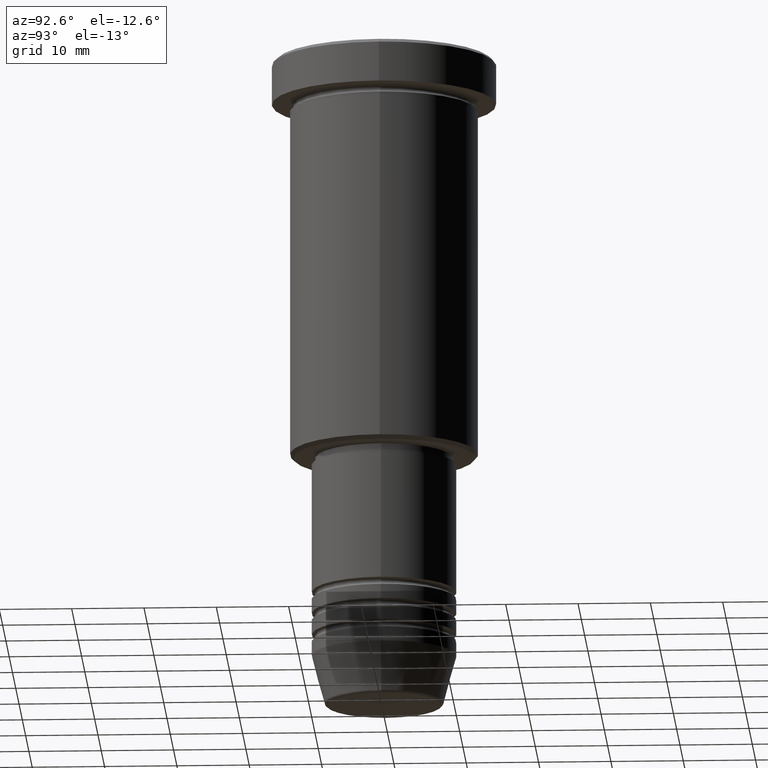
[diagram: clean part render]
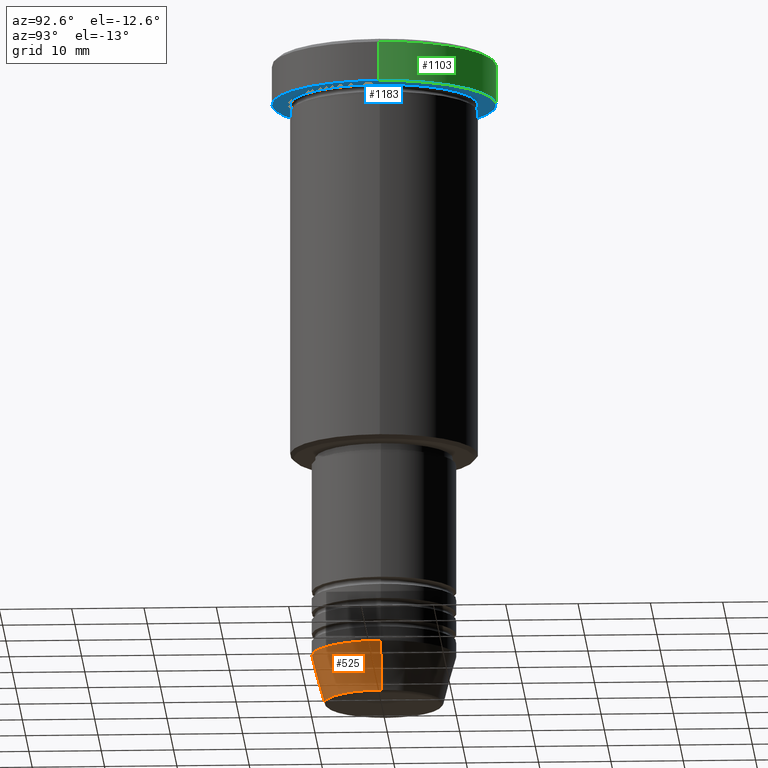
[diagram: same view with three faces highlighted in distinct colors, each labeled with its STEP entity id]
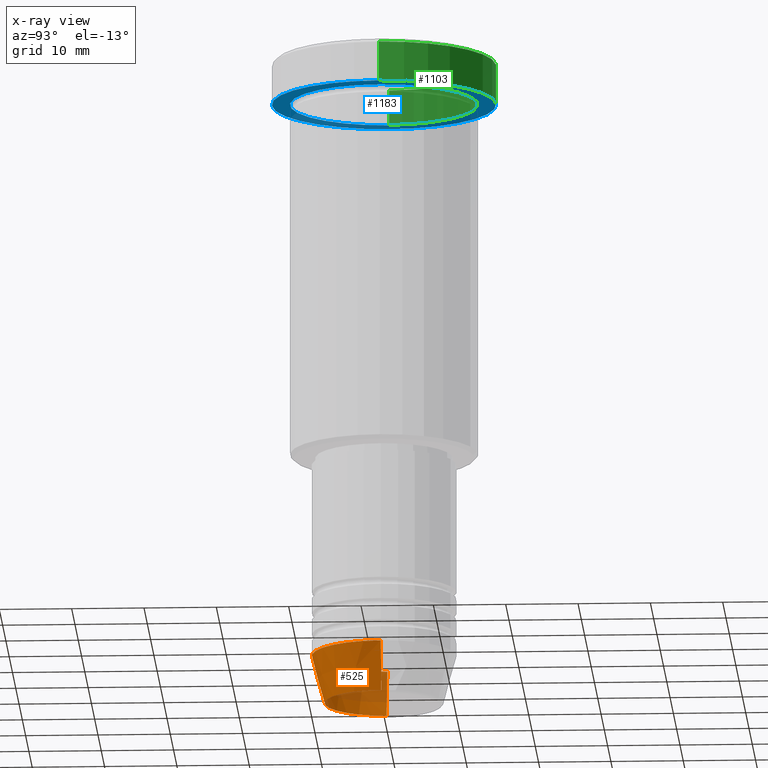
[diagram: x-ray of the same camera — body ghosted, the three highlighted faces saturated]
A machine part, auxiliary view with three faces highlighted in distinct colors.
The next image is the same camera in x-ray (body ghosted, the three faces saturated) — at least one of them is partly hidden behind the body in this view.
Their STEP definitions:

[orange] entity #525 — the highlighted conical surface has half-angle 15 deg.
#6 = CARTESIAN_POINT ( 'NONE',  ( 0.000000000000000000, 0.000000000000000000, -84.00000000000000000 ) ) ;
#9 = VERTEX_POINT ( 'NONE', #24 ) ;
#24 = CARTESIAN_POINT ( 'NONE',  ( -10.00000000000000000, 1.224646799147353256E-15, -84.00000000000000000 ) ) ;
#66 = AXIS2_PLACEMENT_3D ( 'NONE', #528, #891, #135 ) ;
#70 = CIRCLE ( 'NONE', #583, 10.00000000000000000 ) ;
#97 = CIRCLE ( 'NONE', #693, 8.223655072137194821 ) ;
#135 = DIRECTION ( 'NONE',  ( 1.000000000000000000, 0.000000000000000000, 0.000000000000000000 ) ) ;
#173 = CARTESIAN_POINT ( 'NONE',  ( -8.223655072137194821, 1.115877042642912251E-15, -90.62940952255125637 ) ) ;
#211 = ORIENTED_EDGE ( 'NONE', *, *, #1033, .F. ) ;
#228 = DIRECTION ( 'NONE',  ( 1.000000000000000000, 0.000000000000000000, 0.000000000000000000 ) ) ;
#238 = EDGE_LOOP ( 'NONE', ( #211, #1132, #548, #253 ) ) ;
#253 = ORIENTED_EDGE ( 'NONE', *, *, #1166, .F. ) ;
#262 = CARTESIAN_POINT ( 'NONE',  ( 10.00000000000000000, 0.000000000000000000, -84.00000000000000000 ) ) ;
#280 = LINE ( 'NONE', #988, #1057 ) ;
#340 = DIRECTION ( 'NONE',  ( 0.2588190451025213501, 0.000000000000000000, 0.9659258262890680902 ) ) ;
#384 = CARTESIAN_POINT ( 'NONE',  ( 0.000000000000000000, 0.000000000000000000, -90.62940952255125637 ) ) ;
#487 = EDGE_CURVE ( 'NONE', #672, #865, #717, .T. ) ;
#525 = ADVANCED_FACE ( 'NONE', ( #979 ), #622, .T. ) ;
#528 = CARTESIAN_POINT ( 'NONE',  ( 0.000000000000000000, 0.000000000000000000, -84.00000000000000000 ) ) ;
#532 = VERTEX_POINT ( 'NONE', #173 ) ;
#548 = ORIENTED_EDGE ( 'NONE', *, *, #487, .T. ) ;
#583 = AXIS2_PLACEMENT_3D ( 'NONE', #6, #1000, #1102 ) ;
#608 = CARTESIAN_POINT ( 'NONE',  ( 10.00000000000000000, 0.000000000000000000, -84.00000000000000000 ) ) ;
#619 = EDGE_CURVE ( 'NONE', #532, #672, #97, .T. ) ;
#622 = CONICAL_SURFACE ( 'NONE', #66, 10.00000000000000000, 0.2617993877991500740 ) ;
#672 = VERTEX_POINT ( 'NONE', #699 ) ;
#693 = AXIS2_PLACEMENT_3D ( 'NONE', #384, #1168, #228 ) ;
#699 = CARTESIAN_POINT ( 'NONE',  ( 8.223655072137194821, 0.000000000000000000, -90.62940952255125637 ) ) ;
#717 = LINE ( 'NONE', #608, #1052 ) ;
#742 = DIRECTION ( 'NONE',  ( -0.2588190451025213501, 3.169619151431772337E-17, 0.9659258262890680902 ) ) ;
#865 = VERTEX_POINT ( 'NONE', #262 ) ;
#891 = DIRECTION ( 'NONE',  ( -0.000000000000000000, -0.000000000000000000, 1.000000000000000000 ) ) ;
#979 = FACE_OUTER_BOUND ( 'NONE', #238, .T. ) ;
#988 = CARTESIAN_POINT ( 'NONE',  ( -10.00000000000000000, 1.224646799147353256E-15, -84.00000000000000000 ) ) ;
#1000 = DIRECTION ( 'NONE',  ( -0.000000000000000000, -0.000000000000000000, 1.000000000000000000 ) ) ;
#1033 = EDGE_CURVE ( 'NONE', #532, #9, #280, .T. ) ;
#1052 = VECTOR ( 'NONE', #340, 1000.000000000000000 ) ;
#1057 = VECTOR ( 'NONE', #742, 1000.000000000000000 ) ;
#1102 = DIRECTION ( 'NONE',  ( 1.000000000000000000, 0.000000000000000000, 0.000000000000000000 ) ) ;
#1132 = ORIENTED_EDGE ( 'NONE', *, *, #619, .T. ) ;
#1166 = EDGE_CURVE ( 'NONE', #9, #865, #70, .T. ) ;
#1168 = DIRECTION ( 'NONE',  ( -0.000000000000000000, -0.000000000000000000, 1.000000000000000000 ) ) ;

[blue] entity #1183 — the highlighted planar face has unit normal (0, 0, -1).
#3 = DIRECTION ( 'NONE',  ( 1.000000000000000000, 0.000000000000000000, 0.000000000000000000 ) ) ;
#13 = FACE_OUTER_BOUND ( 'NONE', #759, .T. ) ;
#36 = EDGE_CURVE ( 'NONE', #392, #510, #96, .T. ) ;
#91 = PLANE ( 'NONE',  #102 ) ;
#93 = ORIENTED_EDGE ( 'NONE', *, *, #996, .T. ) ;
#96 = CIRCLE ( 'NONE', #772, 13.00000000000000000 ) ;
#102 = AXIS2_PLACEMENT_3D ( 'NONE', #458, #371, #377 ) ;
#150 = CARTESIAN_POINT ( 'NONE',  ( -13.00000000000000000, 0.000000000000000000, -5.999999999999994671 ) ) ;
#179 = ORIENTED_EDGE ( 'NONE', *, *, #1011, .F. ) ;
#193 = DIRECTION ( 'NONE',  ( -1.000000000000000000, 0.000000000000000000, 0.000000000000000000 ) ) ;
#232 = AXIS2_PLACEMENT_3D ( 'NONE', #1106, #816, #460 ) ;
#289 = ORIENTED_EDGE ( 'NONE', *, *, #36, .T. ) ;
#292 = AXIS2_PLACEMENT_3D ( 'NONE', #650, #362, #3 ) ;
#306 = ORIENTED_EDGE ( 'NONE', *, *, #1151, .F. ) ;
#354 = CIRCLE ( 'NONE', #232, 13.00000000000000000 ) ;
#356 = CARTESIAN_POINT ( 'NONE',  ( 13.00000000000000000, 1.592040838891559095E-15, -5.999999999999994671 ) ) ;
#362 = DIRECTION ( 'NONE',  ( -0.000000000000000000, -0.000000000000000000, 1.000000000000000000 ) ) ;
#371 = DIRECTION ( 'NONE',  ( 0.000000000000000000, 0.000000000000000000, -1.000000000000000000 ) ) ;
#377 = DIRECTION ( 'NONE',  ( -1.000000000000000000, 0.000000000000000000, -0.000000000000000000 ) ) ;
#392 = VERTEX_POINT ( 'NONE', #356 ) ;
#458 = CARTESIAN_POINT ( 'NONE',  ( 0.000000000000000000, 15.50000000000000000, -5.999999999999995559 ) ) ;
#460 = DIRECTION ( 'NONE',  ( -1.000000000000000000, 0.000000000000000000, 0.000000000000000000 ) ) ;
#510 = VERTEX_POINT ( 'NONE', #150 ) ;
#570 = EDGE_LOOP ( 'NONE', ( #93, #289 ) ) ;
#581 = AXIS2_PLACEMENT_3D ( 'NONE', #910, #733, #818 ) ;
#650 = CARTESIAN_POINT ( 'NONE',  ( 0.000000000000000000, 0.000000000000000000, -5.999999999999995559 ) ) ;
#701 = VERTEX_POINT ( 'NONE', #858 ) ;
#733 = DIRECTION ( 'NONE',  ( -0.000000000000000000, -0.000000000000000000, 1.000000000000000000 ) ) ;
#737 = VERTEX_POINT ( 'NONE', #1059 ) ;
#759 = EDGE_LOOP ( 'NONE', ( #306, #179 ) ) ;
#767 = CARTESIAN_POINT ( 'NONE',  ( 0.000000000000000000, 0.000000000000000000, -5.999999999999995559 ) ) ;
#772 = AXIS2_PLACEMENT_3D ( 'NONE', #767, #1039, #193 ) ;
#808 = CIRCLE ( 'NONE', #292, 15.50000000000000000 ) ;
#816 = DIRECTION ( 'NONE',  ( -0.000000000000000000, -0.000000000000000000, 1.000000000000000000 ) ) ;
#818 = DIRECTION ( 'NONE',  ( 1.000000000000000000, 0.000000000000000000, 0.000000000000000000 ) ) ;
#828 = FACE_BOUND ( 'NONE', #570, .T. ) ;
#858 = CARTESIAN_POINT ( 'NONE',  ( 15.50000000000000000, 0.000000000000000000, -5.999999999999995559 ) ) ;
#910 = CARTESIAN_POINT ( 'NONE',  ( 0.000000000000000000, 0.000000000000000000, -5.999999999999995559 ) ) ;
#941 = CIRCLE ( 'NONE', #581, 15.50000000000000000 ) ;
#996 = EDGE_CURVE ( 'NONE', #510, #392, #354, .T. ) ;
#1011 = EDGE_CURVE ( 'NONE', #737, #701, #808, .T. ) ;
#1039 = DIRECTION ( 'NONE',  ( -0.000000000000000000, -0.000000000000000000, 1.000000000000000000 ) ) ;
#1059 = CARTESIAN_POINT ( 'NONE',  ( -15.50000000000000000, 1.898202538678397557E-15, -5.999999999999995559 ) ) ;
#1106 = CARTESIAN_POINT ( 'NONE',  ( 0.000000000000000000, 0.000000000000000000, -5.999999999999995559 ) ) ;
#1151 = EDGE_CURVE ( 'NONE', #701, #737, #941, .T. ) ;
#1183 = ADVANCED_FACE ( 'NONE', ( #828, #13 ), #91, .T. ) ;

[green] entity #1103 — the highlighted cylindrical surface (partial cylindrical patch) has radius 15.5 mm, axis along (-0, -0, 1).
#8 = DIRECTION ( 'NONE',  ( 0.000000000000000000, 0.000000000000000000, -1.000000000000000000 ) ) ;
#87 = EDGE_CURVE ( 'NONE', #701, #892, #1065, .T. ) ;
#90 = VERTEX_POINT ( 'NONE', #241 ) ;
#104 = CYLINDRICAL_SURFACE ( 'NONE', #332, 15.50000000000000000 ) ;
#241 = CARTESIAN_POINT ( 'NONE',  ( -15.50000000000000000, 1.898202538678397557E-15, -0.4999999999999987232 ) ) ;
#278 = CARTESIAN_POINT ( 'NONE',  ( 15.50000000000000000, 0.000000000000000000, -0.4999999999999987232 ) ) ;
#284 = FACE_OUTER_BOUND ( 'NONE', #1126, .T. ) ;
#316 = CARTESIAN_POINT ( 'NONE',  ( 15.50000000000000000, 0.000000000000000000, 0.000000000000000000 ) ) ;
#332 = AXIS2_PLACEMENT_3D ( 'NONE', #652, #453, #822 ) ;
#364 = ORIENTED_EDGE ( 'NONE', *, *, #1151, .T. ) ;
#419 = ORIENTED_EDGE ( 'NONE', *, *, #856, .T. ) ;
#425 = VECTOR ( 'NONE', #857, 1000.000000000000000 ) ;
#453 = DIRECTION ( 'NONE',  ( -0.000000000000000000, -0.000000000000000000, 1.000000000000000000 ) ) ;
#513 = DIRECTION ( 'NONE',  ( -0.000000000000000000, -0.000000000000000000, 1.000000000000000000 ) ) ;
#552 = ORIENTED_EDGE ( 'NONE', *, *, #1003, .T. ) ;
#581 = AXIS2_PLACEMENT_3D ( 'NONE', #910, #733, #818 ) ;
#652 = CARTESIAN_POINT ( 'NONE',  ( 0.000000000000000000, 0.000000000000000000, 0.000000000000000000 ) ) ;
#681 = AXIS2_PLACEMENT_3D ( 'NONE', #825, #8, #919 ) ;
#701 = VERTEX_POINT ( 'NONE', #858 ) ;
#733 = DIRECTION ( 'NONE',  ( -0.000000000000000000, -0.000000000000000000, 1.000000000000000000 ) ) ;
#737 = VERTEX_POINT ( 'NONE', #1059 ) ;
#800 = LINE ( 'NONE', #1170, #958 ) ;
#818 = DIRECTION ( 'NONE',  ( 1.000000000000000000, 0.000000000000000000, 0.000000000000000000 ) ) ;
#822 = DIRECTION ( 'NONE',  ( 1.000000000000000000, 0.000000000000000000, 0.000000000000000000 ) ) ;
#825 = CARTESIAN_POINT ( 'NONE',  ( 0.000000000000000000, 0.000000000000000000, -0.4999999999999987232 ) ) ;
#856 = EDGE_CURVE ( 'NONE', #737, #90, #800, .T. ) ;
#857 = DIRECTION ( 'NONE',  ( -0.000000000000000000, -0.000000000000000000, 1.000000000000000000 ) ) ;
#858 = CARTESIAN_POINT ( 'NONE',  ( 15.50000000000000000, 0.000000000000000000, -5.999999999999995559 ) ) ;
#892 = VERTEX_POINT ( 'NONE', #278 ) ;
#901 = CIRCLE ( 'NONE', #681, 15.50000000000000000 ) ;
#910 = CARTESIAN_POINT ( 'NONE',  ( 0.000000000000000000, 0.000000000000000000, -5.999999999999995559 ) ) ;
#919 = DIRECTION ( 'NONE',  ( 1.000000000000000000, 0.000000000000000000, 0.000000000000000000 ) ) ;
#920 = ORIENTED_EDGE ( 'NONE', *, *, #87, .F. ) ;
#941 = CIRCLE ( 'NONE', #581, 15.50000000000000000 ) ;
#958 = VECTOR ( 'NONE', #513, 1000.000000000000000 ) ;
#1003 = EDGE_CURVE ( 'NONE', #90, #892, #901, .T. ) ;
#1059 = CARTESIAN_POINT ( 'NONE',  ( -15.50000000000000000, 1.898202538678397557E-15, -5.999999999999995559 ) ) ;
#1065 = LINE ( 'NONE', #316, #425 ) ;
#1103 = ADVANCED_FACE ( 'NONE', ( #284 ), #104, .T. ) ;
#1126 = EDGE_LOOP ( 'NONE', ( #364, #419, #552, #920 ) ) ;
#1151 = EDGE_CURVE ( 'NONE', #701, #737, #941, .T. ) ;
#1170 = CARTESIAN_POINT ( 'NONE',  ( -15.50000000000000000, 1.898202538678397557E-15, 0.000000000000000000 ) ) ;